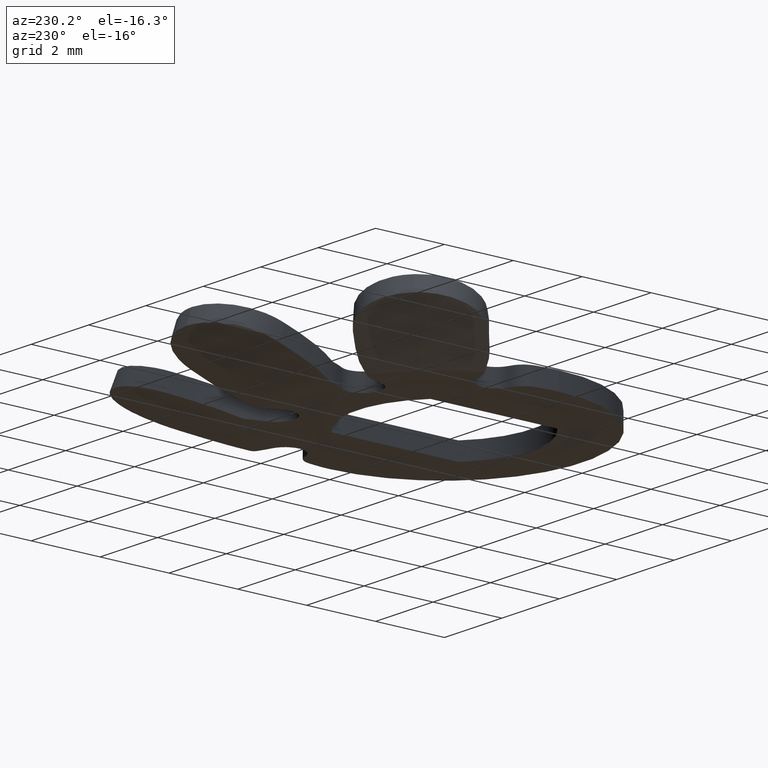
[diagram: clean part render]
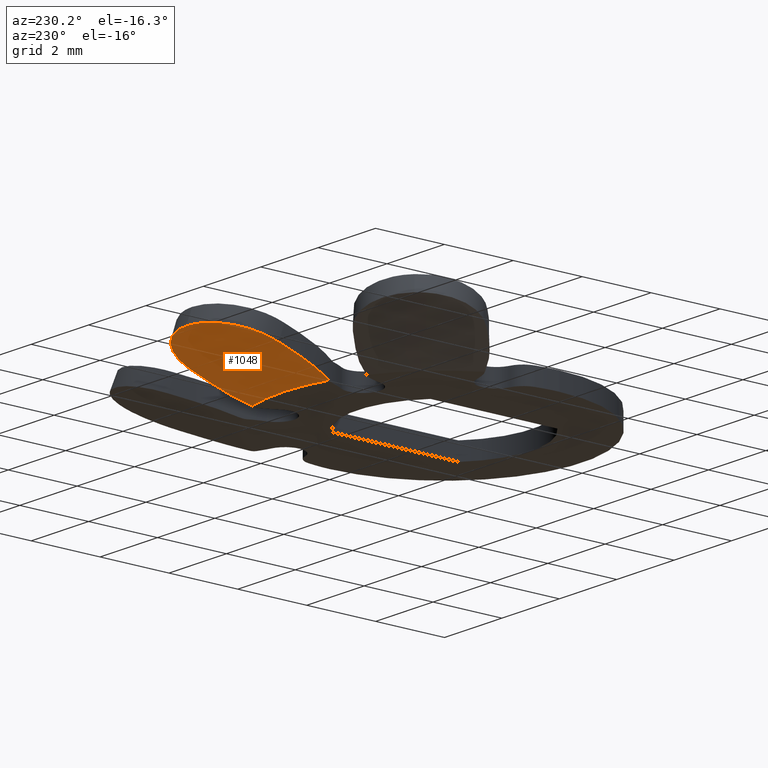
[diagram: same view with one face highlighted and labeled with its STEP entity id]
A machine part, auxiliary view. The second image highlights one B-rep face of the part: STEP entity #1048.
In plain terms, the highlighted conical surface has half-angle 70.529 deg.
Its self-contained STEP definition (entity closure, byte-faithful):
#31 = VERTEX_POINT ( 'NONE', #1021 ) ;
#83 = CARTESIAN_POINT ( 'NONE',  ( -0.1981633399704008100, 7.495093791412856800, 1.028595479208968000 ) ) ;
#110 = VERTEX_POINT ( 'NONE', #890 ) ;
#111 = ORIENTED_EDGE ( 'NONE', *, *, #153, .F. ) ;
#132 = EDGE_CURVE ( 'NONE', #1347, #205, #726, .T. ) ;
#144 = CARTESIAN_POINT ( 'NONE',  ( -1.499999999999999800, 6.060561618159758800, 0.5860651893590866900 ) ) ;
#153 = EDGE_CURVE ( 'NONE', #31, #905, #1709, .T. ) ;
#167 = AXIS2_PLACEMENT_3D ( 'NONE', #841, #978, #174 ) ;
#174 = DIRECTION ( 'NONE',  ( -1.000000000000000000, -3.552713678800500900E-015, 0.0000000000000000000 ) ) ;
#190 = CARTESIAN_POINT ( 'NONE',  ( 1.447535040106320100, 4.777562460512922500, 0.1436284149278994300 ) ) ;
#205 = VERTEX_POINT ( 'NONE', #776 ) ;
#220 = CARTESIAN_POINT ( 'NONE',  ( -1.490280164343710000, 6.246664885543674800, 0.6491483715633714600 ) ) ;
#233 = CARTESIAN_POINT ( 'NONE',  ( 0.09908130675207746400, 7.495093791412857700, 1.028595479208968000 ) ) ;
#267 = CARTESIAN_POINT ( 'NONE',  ( 0.9912007264945546000, 7.138767066618417100, 0.9266777509690425900 ) ) ;
#303 = VERTEX_POINT ( 'NONE', #751 ) ;
#308 = CONICAL_SURFACE ( 'NONE', #407, 4.585786437626908600, 1.230959417340774300 ) ;
#343 = CARTESIAN_POINT ( 'NONE',  ( -1.452209141070807600, 6.428810920196761800, 0.7088349508185263200 ) ) ;
#350 = CARTESIAN_POINT ( 'NONE',  ( 1.343895358568111700, 4.468973376850315500, 0.02859547920896888000 ) ) ;
#365 = CARTESIAN_POINT ( 'NONE',  ( 0.7510762362300225100, 7.304295846435673300, 0.9745729836362212500 ) ) ;
#400 = VERTEX_POINT ( 'NONE', #350 ) ;
#407 = AXIS2_PLACEMENT_3D ( 'NONE', #945, #1614, #681 ) ;
#442 = CARTESIAN_POINT ( 'NONE',  ( 1.499999999999999800, 6.060561618159772100, 0.5860651893590912400 ) ) ;
#491 = CARTESIAN_POINT ( 'NONE',  ( 0.3881609962341742700, 7.448971304767519000, 1.015641333992064700 ) ) ;
#492 = CARTESIAN_POINT ( 'NONE',  ( -1.348190511790158500, 6.692800410741755400, 0.7923960592299114100 ) ) ;
#500 = B_SPLINE_CURVE_WITH_KNOTS ( 'NONE', 3,
 ( #1681, #761, #220, #343, #1281, #492, #1418, #617, #1552, #756, #1679, #884, #83, #1022 ),
 .UNSPECIFIED., .F., .F.,
 ( 4, 2, 2, 2, 2, 2, 4 ),
 ( 1.571457454787580700E-017, 0.0002930181684667388000, 0.0005860363369334618800, 0.0008790545054001850200, 0.001172072673866907900, 0.001758109010800354000, 0.002344145347733799400 ),
 .UNSPECIFIED. ) ;
#530 = ORIENTED_EDGE ( 'NONE', *, *, #1618, .T. ) ;
#572 = CARTESIAN_POINT ( 'NONE',  ( 1.499999999999999800, 5.424095981291626100, 0.3683661020349876500 ) ) ;
#617 = CARTESIAN_POINT ( 'NONE',  ( -1.193463668065432700, 6.931228788814857800, 0.8651866891094639500 ) ) ;
#623 = CARTESIAN_POINT ( 'NONE',  ( -1.692708666284992100E-016, 7.495093791412856800, 1.028595479208968200 ) ) ;
#638 = ORIENTED_EDGE ( 'NONE', *, *, #1234, .T. ) ;
#666 = B_SPLINE_CURVE_WITH_KNOTS ( 'NONE', 3,
 ( #865, #735, #190, #1136 ),
 .UNSPECIFIED., .F., .F.,
 ( 4, 4 ),
 ( 0.0000000000000000000, 0.001025622323167076300 ),
 .UNSPECIFIED. ) ;
#681 = DIRECTION ( 'NONE',  ( 1.000000000000000000, 0.0000000000000000000, 0.0000000000000000000 ) ) ;
#684 = CARTESIAN_POINT ( 'NONE',  ( -1.499999999999999800, 5.424095981291627800, 0.3683661020349879300 ) ) ;
#726 = B_SPLINE_CURVE_WITH_KNOTS ( 'NONE', 3,
 ( #623, #233, #1043, #491, #1032, #1677, #365, #1428, #267, #1080, #943, #1340, #938, #1441 ),
 .UNSPECIFIED., .F., .F.,
 ( 4, 2, 2, 2, 2, 2, 4 ),
 ( 0.0000000000000000000, 0.0002930194012329517500, 0.0005860388024659035000, 0.0008790582036988553600, 0.001172077604931807000, 0.001758116407397710300, 0.002344155209863613600 ),
 .UNSPECIFIED. ) ;
#735 = CARTESIAN_POINT ( 'NONE',  ( 1.499999999999999800, 5.095978132669036300, 0.2565556011867024000 ) ) ;
#751 = CARTESIAN_POINT ( 'NONE',  ( 1.499999999999999800, 5.424095981291626100, 0.3683661020349876500 ) ) ;
#756 = CARTESIAN_POINT ( 'NONE',  ( -0.9228884697087493800, 7.204525423645014500, 0.9460823278403169800 ) ) ;
#761 = CARTESIAN_POINT ( 'NONE',  ( -1.499999999999999600, 6.154278516581879200, 0.6182286373091523400 ) ) ;
#776 = CARTESIAN_POINT ( 'NONE',  ( 1.499999999999999800, 6.060561618159772100, 0.5860651893590912400 ) ) ;
#797 = EDGE_CURVE ( 'NONE', #400, #110, #1064, .T. ) ;
#807 = CARTESIAN_POINT ( 'NONE',  ( -1.499999999999999800, 5.636334712329500900, 0.4406892594504344100 ) ) ;
#814 = EDGE_LOOP ( 'NONE', ( #530, #1548, #638, #111, #1394, #1591, #1262 ) ) ;
#841 = CARTESIAN_POINT ( 'NONE',  ( 0.0000000000000000000, 0.0000000000000000000, 0.02859547920896869700 ) ) ;
#865 = CARTESIAN_POINT ( 'NONE',  ( 1.499999999999999800, 5.424095981291626100, 0.3683661020349876500 ) ) ;
#884 = CARTESIAN_POINT ( 'NONE',  ( -0.3950634605185010500, 7.456623580677403500, 1.017877804390301600 ) ) ;
#890 = CARTESIAN_POINT ( 'NONE',  ( -1.343895358568110600, 4.468973376850315500, 0.02859547920896884200 ) ) ;
#905 = VERTEX_POINT ( 'NONE', #1089 ) ;
#921 = CARTESIAN_POINT ( 'NONE',  ( -1.499999999999999800, 5.424095981291627800, 0.3683661020349879300 ) ) ;
#938 = CARTESIAN_POINT ( 'NONE',  ( 1.499999999999999600, 6.247992345747904100, 0.6503910318968005900 ) ) ;
#943 = CARTESIAN_POINT ( 'NONE',  ( 1.310402250344983500, 6.779439094455026900, 0.8196362706692419400 ) ) ;
#945 = CARTESIAN_POINT ( 'NONE',  ( 0.0000000000000000000, 0.0000000000000000000, 0.0000000000000000000 ) ) ;
#958 = CARTESIAN_POINT ( 'NONE',  ( -1.692708666284992100E-016, 7.495093791412856800, 1.028595479208968200 ) ) ;
#978 = DIRECTION ( 'NONE',  ( -0.0000000000000000000, -0.0000000000000000000, 1.000000000000000000 ) ) ;
#1021 = CARTESIAN_POINT ( 'NONE',  ( -1.499999999999999800, 6.060561618159758800, 0.5860651893590866900 ) ) ;
#1022 = CARTESIAN_POINT ( 'NONE',  ( -1.692708666284992100E-016, 7.495093791412856800, 1.028595479208968200 ) ) ;
#1032 = CARTESIAN_POINT ( 'NONE',  ( 0.4833927860487806600, 7.421166024095410500, 1.007811277319125500 ) ) ;
#1043 = CARTESIAN_POINT ( 'NONE',  ( 0.1965023232790960300, 7.485711646593189000, 1.025970362798417800 ) ) ;
#1048 = ADVANCED_FACE ( 'NONE', ( #1380 ), #308, .T. ) ;
#1064 = CIRCLE ( 'NONE', #167, 4.666666666666670500 ) ;
#1080 = CARTESIAN_POINT ( 'NONE',  ( 1.198654647888986800, 6.939628941520459700, 0.8679251152952139900 ) ) ;
#1089 = CARTESIAN_POINT ( 'NONE',  ( -1.499999999999999800, 5.424095981291627800, 0.3683661020349879300 ) ) ;
#1136 = CARTESIAN_POINT ( 'NONE',  ( 1.343895358568111700, 4.468973376850315500, 0.02859547920896888000 ) ) ;
#1165 = B_SPLINE_CURVE_WITH_KNOTS ( 'NONE', 3,
 ( #442, #1233, #1372, #572 ),
 .UNSPECIFIED., .F., .F.,
 ( 4, 4 ),
 ( 0.01041802188978062500, 0.01109069406441440600 ),
 .UNSPECIFIED. ) ;
#1233 = CARTESIAN_POINT ( 'NONE',  ( 1.499999999999999800, 5.848481631438216900, 0.5132797714780467100 ) ) ;
#1234 = EDGE_CURVE ( 'NONE', #110, #905, #1546, .T. ) ;
#1262 = ORIENTED_EDGE ( 'NONE', *, *, #1731, .T. ) ;
#1281 = CARTESIAN_POINT ( 'NONE',  ( -1.423395918069261500, 6.519518504788556400, 0.7378955607323264300 ) ) ;
#1340 = CARTESIAN_POINT ( 'NONE',  ( 1.460166035801589800, 6.435222826060807800, 0.7113922062525409600 ) ) ;
#1347 = VERTEX_POINT ( 'NONE', #958 ) ;
#1372 = CARTESIAN_POINT ( 'NONE',  ( 1.499999999999999800, 5.636334712329506200, 0.4406892594504359100 ) ) ;
#1380 = FACE_OUTER_BOUND ( 'NONE', #814, .T. ) ;
#1394 = ORIENTED_EDGE ( 'NONE', *, *, #1509, .T. ) ;
#1418 = CARTESIAN_POINT ( 'NONE',  ( -1.302173978696238700, 6.775147601057915900, 0.8177812283600713900 ) ) ;
#1428 = CARTESIAN_POINT ( 'NONE',  ( 0.9140520335877608800, 7.199626457509497300, 0.9443802491715579400 ) ) ;
#1441 = CARTESIAN_POINT ( 'NONE',  ( 1.499999999999999800, 6.060561618159772100, 0.5860651893590912400 ) ) ;
#1449 = CARTESIAN_POINT ( 'NONE',  ( -1.447535040106320100, 4.777562460512923400, 0.1436284149278996800 ) ) ;
#1452 = CARTESIAN_POINT ( 'NONE',  ( -1.343895358568110600, 4.468973376850315500, 0.02859547920896884200 ) ) ;
#1509 = EDGE_CURVE ( 'NONE', #31, #1347, #500, .T. ) ;
#1546 = B_SPLINE_CURVE_WITH_KNOTS ( 'NONE', 3,
 ( #1452, #1449, #1716, #921 ),
 .UNSPECIFIED., .F., .F.,
 ( 4, 4 ),
 ( 8.486621797141309200E-005, 0.001110488541138491400 ),
 .UNSPECIFIED. ) ;
#1548 = ORIENTED_EDGE ( 'NONE', *, *, #797, .T. ) ;
#1552 = CARTESIAN_POINT ( 'NONE',  ( -1.130198542996664600, 7.005248036630225000, 0.8872832104285995900 ) ) ;
#1591 = ORIENTED_EDGE ( 'NONE', *, *, #132, .T. ) ;
#1603 = CARTESIAN_POINT ( 'NONE',  ( -1.499999999999999800, 5.848481631438208000, 0.5132797714780436000 ) ) ;
#1614 = DIRECTION ( 'NONE',  ( -0.0000000000000000000, -0.0000000000000000000, 1.000000000000000000 ) ) ;
#1618 = EDGE_CURVE ( 'NONE', #303, #400, #666, .T. ) ;
#1677 = CARTESIAN_POINT ( 'NONE',  ( 0.6649629660878904100, 7.348648260779674100, 0.9872256571698199100 ) ) ;
#1679 = CARTESIAN_POINT ( 'NONE',  ( -0.7557468478607164400, 7.312209147487568100, 0.9768804874492038600 ) ) ;
#1681 = CARTESIAN_POINT ( 'NONE',  ( -1.499999999999999800, 6.060561618159758800, 0.5860651893590866900 ) ) ;
#1709 = B_SPLINE_CURVE_WITH_KNOTS ( 'NONE', 3,
 ( #144, #1603, #807, #684 ),
 .UNSPECIFIED., .F., .F.,
 ( 4, 4 ),
 ( 0.01041802188978063900, 0.01109069406441440600 ),
 .UNSPECIFIED. ) ;
#1716 = CARTESIAN_POINT ( 'NONE',  ( -1.500000000000000200, 5.095978132669038100, 0.2565556011867025600 ) ) ;
#1731 = EDGE_CURVE ( 'NONE', #205, #303, #1165, .T. ) ;